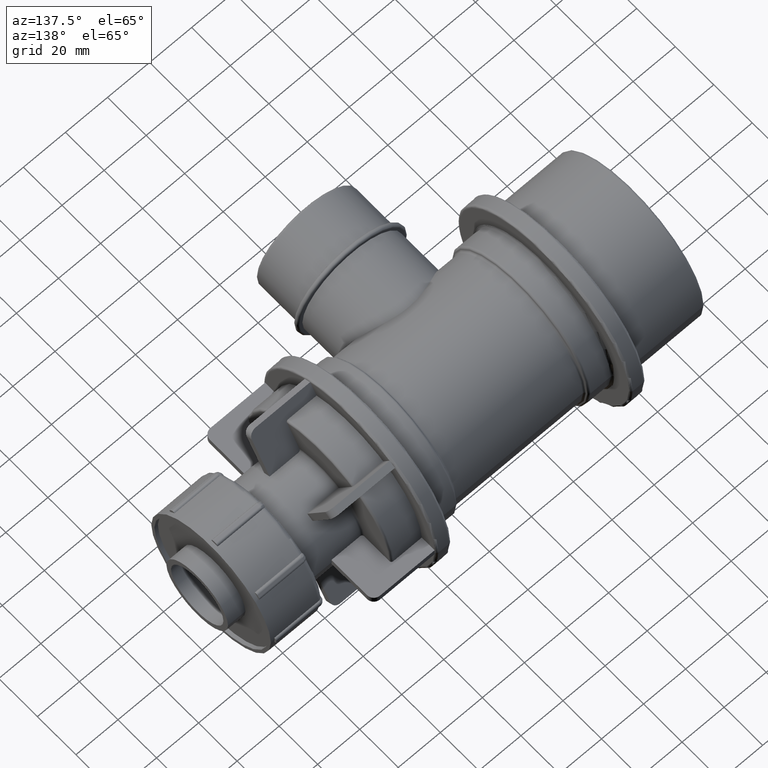
[diagram: clean part render]
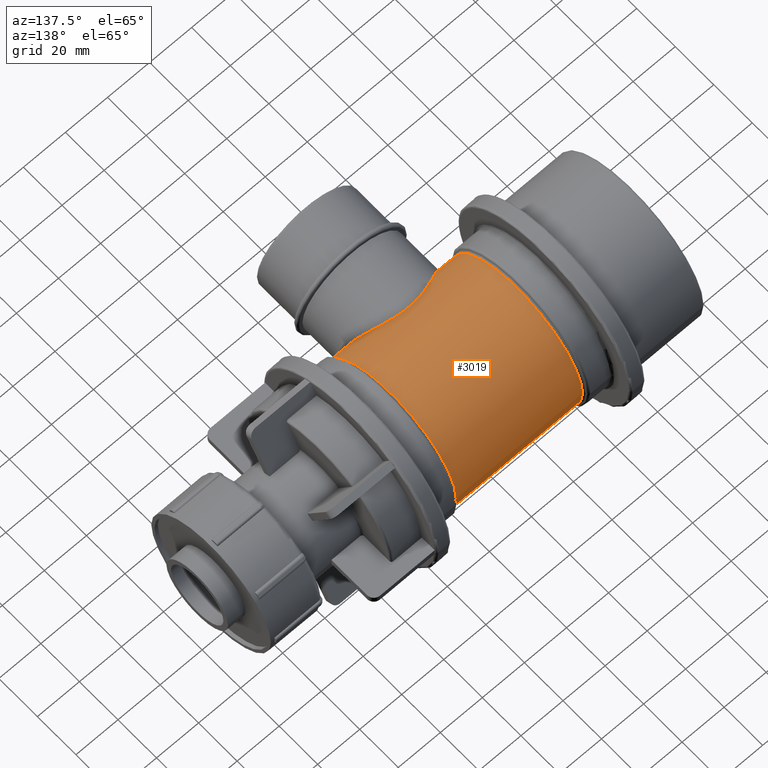
[diagram: same view with one face highlighted and labeled with its STEP entity id]
A machine part, auxiliary view. The second image highlights one B-rep face of the part: STEP entity #3019.
In plain terms, the highlighted cylindrical surface (bore or boss wall) has radius 33.75 mm, axis along (1, 0, 0).
Its self-contained STEP definition (entity closure, byte-faithful):
#524=CIRCLE('',#3253,33.75);
#525=CIRCLE('',#3255,33.75);
#752=FACE_BOUND('',#1039,.T.);
#753=FACE_BOUND('',#1040,.T.);
#812=FACE_OUTER_BOUND('',#1038,.T.);
#1038=EDGE_LOOP('',(#2092));
#1039=EDGE_LOOP('',(#2093));
#1040=EDGE_LOOP('',(#2094));
#1282=B_SPLINE_CURVE_WITH_KNOTS('',3,(#4559,#4560,#4561,#4562,#4563,#4564,
#4565,#4566,#4567,#4568,#4569,#4570,#4571,#4572,#4573,#4574,#4575,#4576,
#4577,#4578,#4579,#4580,#4581,#4582,#4583,#4584,#4585,#4586,#4587,#4588,
#4589,#4590,#4591,#4592,#4593,#4594,#4595,#4596,#4597,#4598,#4599,#4600,
#4601,#4602,#4603,#4604,#4605,#4606,#4607,#4608),.UNSPECIFIED.,.T.,.F.,
(4,2,2,2,2,2,2,2,2,2,2,2,2,2,2,2,2,2,2,2,2,2,2,2,4),(0.,0.297846823282371,
0.595693646564742,1.19138729312948,1.78596310865965,2.08325101642473,2.38053892418982,
2.6778268319549,2.97511473971998,3.56969055525015,4.16538420181489,4.46323102509726,
4.76107784837963,5.058924671662,5.35677149494438,5.95246514150912,6.54704095703928,
6.84432886480437,7.14161677256945,7.43890468033453,7.73619258809962,8.33076840362978,
8.92646205019453,9.2243088734769,9.52215569675927),.UNSPECIFIED.);
#1334=VERTEX_POINT('',#4558);
#1349=VERTEX_POINT('',#4707);
#1350=VERTEX_POINT('',#4710);
#1628=EDGE_CURVE('',#1334,#1334,#1282,.T.);
#1643=EDGE_CURVE('',#1349,#1349,#524,.T.);
#1644=EDGE_CURVE('',#1350,#1350,#525,.T.);
#2092=ORIENTED_EDGE('',*,*,#1644,.F.);
#2093=ORIENTED_EDGE('',*,*,#1628,.T.);
#2094=ORIENTED_EDGE('',*,*,#1643,.F.);
#2940=CYLINDRICAL_SURFACE('',#3254,33.75);
#3019=ADVANCED_FACE('',(#812,#752,#753),#2940,.T.);
#3253=AXIS2_PLACEMENT_3D('',#4708,#3664,#3665);
#3254=AXIS2_PLACEMENT_3D('',#4709,#3666,#3667);
#3255=AXIS2_PLACEMENT_3D('',#4711,#3668,#3669);
#3664=DIRECTION('center_axis',(-1.,0.,0.));
#3665=DIRECTION('ref_axis',(0.,-1.,1.83697019872103E-16));
#3666=DIRECTION('center_axis',(1.,0.,0.));
#3667=DIRECTION('ref_axis',(0.,1.,0.));
#3668=DIRECTION('center_axis',(1.,0.,0.));
#3669=DIRECTION('ref_axis',(0.,1.,1.8490934548735E-14));
#4558=CARTESIAN_POINT('',(9.99200722162641E-15,-29.9615750720715,-15.535975));
#4559=CARTESIAN_POINT('Ctrl Pts',(9.99200722162641E-15,-29.9615750720715,
-15.535975));
#4560=CARTESIAN_POINT('Ctrl Pts',(-0.99282274427456,-29.9615750720715,-15.535975));
#4561=CARTESIAN_POINT('Ctrl Pts',(-2.01364809435461,-30.0123489016254,-15.4392955990789));
#4562=CARTESIAN_POINT('Ctrl Pts',(-4.03350492890019,-30.2151529798586,-15.0385326883145));
#4563=CARTESIAN_POINT('Ctrl Pts',(-5.03259602221332,-30.3668860694912,-14.7345993043153));
#4564=CARTESIAN_POINT('Ctrl Pts',(-7.89475542570881,-30.9276894483553,-13.539393087408));
#4565=CARTESIAN_POINT('Ctrl Pts',(-9.62136532238342,-31.4424249343702,-12.3498212273059));
#4566=CARTESIAN_POINT('Ctrl Pts',(-12.3472612262848,-32.3808033595306,-9.62392532340457));
#4567=CARTESIAN_POINT('Ctrl Pts',(-13.5387395992768,-32.8705926631432,-7.89640541234864));
#4568=CARTESIAN_POINT('Ctrl Pts',(-14.7350749686836,-33.3869587517985,-5.03141440189864));
#4569=CARTESIAN_POINT('Ctrl Pts',(-15.0391142523387,-33.523709188,-4.03137400186707));
#4570=CARTESIAN_POINT('Ctrl Pts',(-15.4396292398892,-33.7052855096937,-2.01116453234764));
#4571=CARTESIAN_POINT('Ctrl Pts',(-15.535975,-33.75,-0.99095969255028));
#4572=CARTESIAN_POINT('Ctrl Pts',(-15.535975,-33.75,0.990959692550276));
#4573=CARTESIAN_POINT('Ctrl Pts',(-15.4396292398892,-33.7052855096937,2.01116453234763));
#4574=CARTESIAN_POINT('Ctrl Pts',(-15.0391142523387,-33.523709188,4.03137400186706));
#4575=CARTESIAN_POINT('Ctrl Pts',(-14.7350749686836,-33.3869587517985,5.03141440189864));
#4576=CARTESIAN_POINT('Ctrl Pts',(-13.5387395992768,-32.8705926631432,7.89640541234864));
#4577=CARTESIAN_POINT('Ctrl Pts',(-12.3472612262848,-32.3808033595306,9.62392532340457));
#4578=CARTESIAN_POINT('Ctrl Pts',(-9.62136532238342,-31.4424249343702,12.3498212273059));
#4579=CARTESIAN_POINT('Ctrl Pts',(-7.89475542570881,-30.9276894483553,13.539393087408));
#4580=CARTESIAN_POINT('Ctrl Pts',(-5.03259602221333,-30.3668860694912,14.7345993043153));
#4581=CARTESIAN_POINT('Ctrl Pts',(-4.0335049289002,-30.2151529798586,15.0385326883145));
#4582=CARTESIAN_POINT('Ctrl Pts',(-2.01364809435461,-30.0123489016254,15.4392955990789));
#4583=CARTESIAN_POINT('Ctrl Pts',(-0.992822744274561,-29.9615750720715,
15.535975));
#4584=CARTESIAN_POINT('Ctrl Pts',(0.99282274427458,-29.9615750720715,15.535975));
#4585=CARTESIAN_POINT('Ctrl Pts',(2.01364809435463,-30.0123489016254,15.4392955990789));
#4586=CARTESIAN_POINT('Ctrl Pts',(4.03350492890021,-30.2151529798586,15.0385326883145));
#4587=CARTESIAN_POINT('Ctrl Pts',(5.03259602221334,-30.3668860694912,14.7345993043153));
#4588=CARTESIAN_POINT('Ctrl Pts',(7.89475542570882,-30.9276894483553,13.539393087408));
#4589=CARTESIAN_POINT('Ctrl Pts',(9.62136532238343,-31.4424249343702,12.3498212273059));
#4590=CARTESIAN_POINT('Ctrl Pts',(12.3472612262848,-32.3808033595306,9.62392532340457));
#4591=CARTESIAN_POINT('Ctrl Pts',(13.5387395992768,-32.8705926631432,7.89640541234864));
#4592=CARTESIAN_POINT('Ctrl Pts',(14.7350749686837,-33.3869587517985,5.03141440189864));
#4593=CARTESIAN_POINT('Ctrl Pts',(15.0391142523387,-33.523709188,4.03137400186707));
#4594=CARTESIAN_POINT('Ctrl Pts',(15.4396292398893,-33.7052855096937,2.01116453234764));
#4595=CARTESIAN_POINT('Ctrl Pts',(15.535975,-33.75,0.990959692550282));
#4596=CARTESIAN_POINT('Ctrl Pts',(15.535975,-33.75,-0.990959692550274));
#4597=CARTESIAN_POINT('Ctrl Pts',(15.4396292398893,-33.7052855096937,-2.01116453234763));
#4598=CARTESIAN_POINT('Ctrl Pts',(15.0391142523388,-33.523709188,-4.03137400186706));
#4599=CARTESIAN_POINT('Ctrl Pts',(14.7350749686837,-33.3869587517985,-5.03141440189863));
#4600=CARTESIAN_POINT('Ctrl Pts',(13.5387395992768,-32.8705926631432,-7.89640541234863));
#4601=CARTESIAN_POINT('Ctrl Pts',(12.3472612262848,-32.3808033595306,-9.62392532340457));
#4602=CARTESIAN_POINT('Ctrl Pts',(9.62136532238343,-31.4424249343702,-12.3498212273059));
#4603=CARTESIAN_POINT('Ctrl Pts',(7.89475542570882,-30.9276894483553,-13.539393087408));
#4604=CARTESIAN_POINT('Ctrl Pts',(5.03259602221334,-30.3668860694913,-14.7345993043153));
#4605=CARTESIAN_POINT('Ctrl Pts',(4.03350492890022,-30.2151529798586,-15.0385326883145));
#4606=CARTESIAN_POINT('Ctrl Pts',(2.01364809435464,-30.0123489016254,-15.4392955990789));
#4607=CARTESIAN_POINT('Ctrl Pts',(0.992822744274583,-29.9615750720715,-15.535975));
#4608=CARTESIAN_POINT('Ctrl Pts',(9.71445146547012E-15,-29.9615750720715,
-15.535975));
#4707=CARTESIAN_POINT('',(-30.05,33.75,-1.03329573678058E-14));
#4708=CARTESIAN_POINT('Origin',(-30.05,0.,0.));
#4709=CARTESIAN_POINT('Origin',(0.,0.,0.));
#4710=CARTESIAN_POINT('',(30.0539100721661,-33.75,-6.28202223966927E-13));
#4711=CARTESIAN_POINT('Origin',(30.0539100721661,0.,0.));